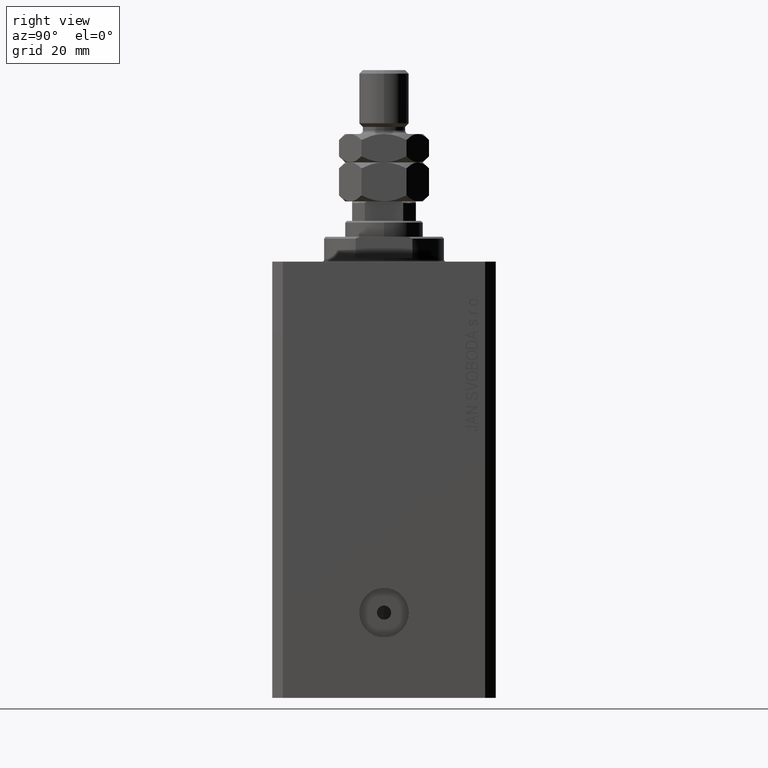
[diagram: clean part render]
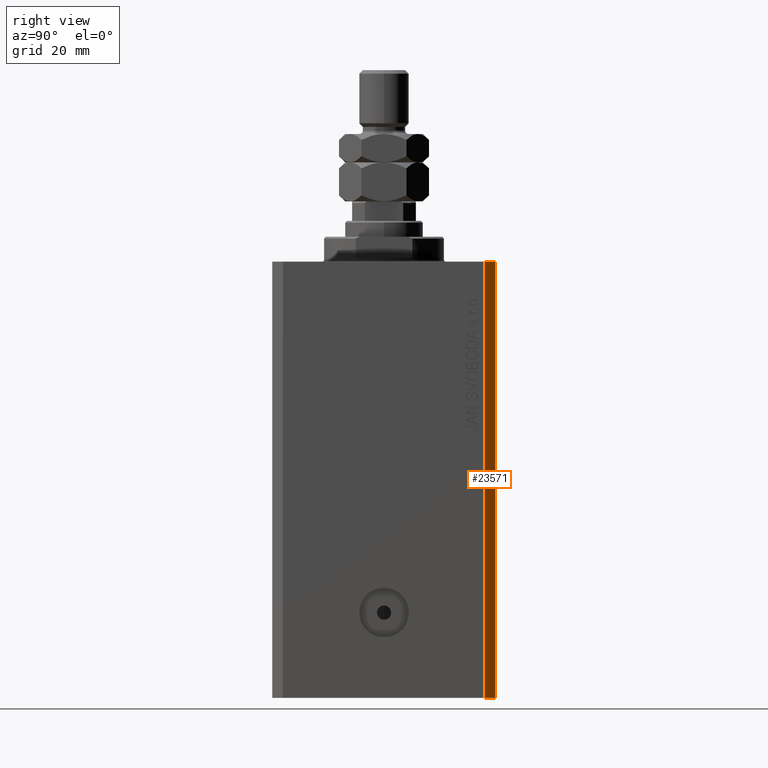
[diagram: same view with one face highlighted and labeled with its STEP entity id]
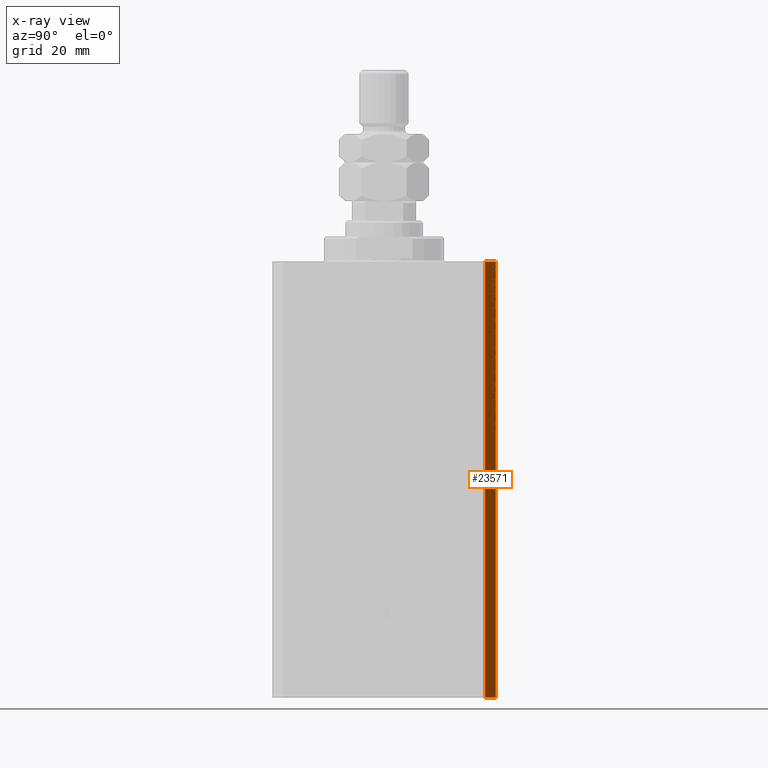
[diagram: x-ray of the same camera — body ghosted, the highlighted face saturated]
A machine part, right view. The second image highlights one B-rep face of the part: STEP entity #23571.
The next image is the same camera in x-ray: the body ghosted, the highlighted face saturated — about 0% of this face is hidden behind the body in this view.
In plain terms, the highlighted planar face has unit normal (0.7071, 0.7071, 0).
Its self-contained STEP definition (entity closure, byte-faithful):
#490 = DIRECTION ( 'NONE',  ( -0.7071067811865355823, 0.7071067811865594521, 0.000000000000000000 ) ) ;
#2692 = CARTESIAN_POINT ( 'NONE',  ( 39.50000000000056843, 31.50000000000000000, -123.0000000000000000 ) ) ;
#3603 = DIRECTION ( 'NONE',  ( 0.000000000000000000, 0.000000000000000000, 1.000000000000000000 ) ) ;
#3980 = PLANE ( 'NONE',  #29532 ) ;
#5276 = ORIENTED_EDGE ( 'NONE', *, *, #7497, .F. ) ;
#6869 = LINE ( 'NONE', #20890, #30222 ) ;
#6970 = VERTEX_POINT ( 'NONE', #37221 ) ;
#7329 = LINE ( 'NONE', #10145, #30126 ) ;
#7487 = CARTESIAN_POINT ( 'NONE',  ( 42.50000000000051870, 28.49999999999995381, -123.0000000000000000 ) ) ;
#7497 = EDGE_CURVE ( 'NONE', #20958, #6970, #45662, .T. ) ;
#10135 = VECTOR ( 'NONE', #41985, 1000.000000000000000 ) ;
#10145 = CARTESIAN_POINT ( 'NONE',  ( 42.50000000000051870, 28.49999999999995381, -123.0000000000000000 ) ) ;
#14122 = DIRECTION ( 'NONE',  ( -0.7071067811865356934, 0.7071067811865594521, 0.000000000000000000 ) ) ;
#15028 = VERTEX_POINT ( 'NONE', #36050 ) ;
#16901 = EDGE_CURVE ( 'NONE', #15028, #29118, #6869, .T. ) ;
#19415 = VECTOR ( 'NONE', #20920, 1000.000000000000114 ) ;
#20890 = CARTESIAN_POINT ( 'NONE',  ( 42.50000000000051870, 28.49999999999995381, -123.0000000000000000 ) ) ;
#20920 = DIRECTION ( 'NONE',  ( -0.7071067811865356934, 0.7071067811865594521, 0.000000000000000000 ) ) ;
#20958 = VERTEX_POINT ( 'NONE', #45950 ) ;
#23571 = ADVANCED_FACE ( 'NONE', ( #39470 ), #3980, .T. ) ;
#24871 = CARTESIAN_POINT ( 'NONE',  ( 42.50000000000051870, 28.49999999999995381, 0.000000000000000000 ) ) ;
#27769 = CARTESIAN_POINT ( 'NONE',  ( 39.50000000000056843, 31.50000000000000000, -123.0000000000000000 ) ) ;
#29073 = ORIENTED_EDGE ( 'NONE', *, *, #35089, .T. ) ;
#29118 = VERTEX_POINT ( 'NONE', #2692 ) ;
#29532 = AXIS2_PLACEMENT_3D ( 'NONE', #7487, #32477, #490 ) ;
#30126 = VECTOR ( 'NONE', #3603, 1000.000000000000000 ) ;
#30222 = VECTOR ( 'NONE', #14122, 1000.000000000000114 ) ;
#30907 = EDGE_CURVE ( 'NONE', #15028, #20958, #7329, .T. ) ;
#31713 = ORIENTED_EDGE ( 'NONE', *, *, #30907, .F. ) ;
#32477 = DIRECTION ( 'NONE',  ( 0.7071067811865594521, 0.7071067811865355823, -0.000000000000000000 ) ) ;
#33217 = EDGE_LOOP ( 'NONE', ( #5276, #31713, #37222, #29073 ) ) ;
#35089 = EDGE_CURVE ( 'NONE', #29118, #6970, #45975, .T. ) ;
#36050 = CARTESIAN_POINT ( 'NONE',  ( 42.50000000000051870, 28.49999999999995381, -123.0000000000000000 ) ) ;
#37221 = CARTESIAN_POINT ( 'NONE',  ( 39.50000000000056843, 31.50000000000000000, 0.000000000000000000 ) ) ;
#37222 = ORIENTED_EDGE ( 'NONE', *, *, #16901, .T. ) ;
#39470 = FACE_OUTER_BOUND ( 'NONE', #33217, .T. ) ;
#41985 = DIRECTION ( 'NONE',  ( 0.000000000000000000, 0.000000000000000000, 1.000000000000000000 ) ) ;
#45662 = LINE ( 'NONE', #24871, #19415 ) ;
#45950 = CARTESIAN_POINT ( 'NONE',  ( 42.50000000000051870, 28.49999999999995381, 0.000000000000000000 ) ) ;
#45975 = LINE ( 'NONE', #27769, #10135 ) ;